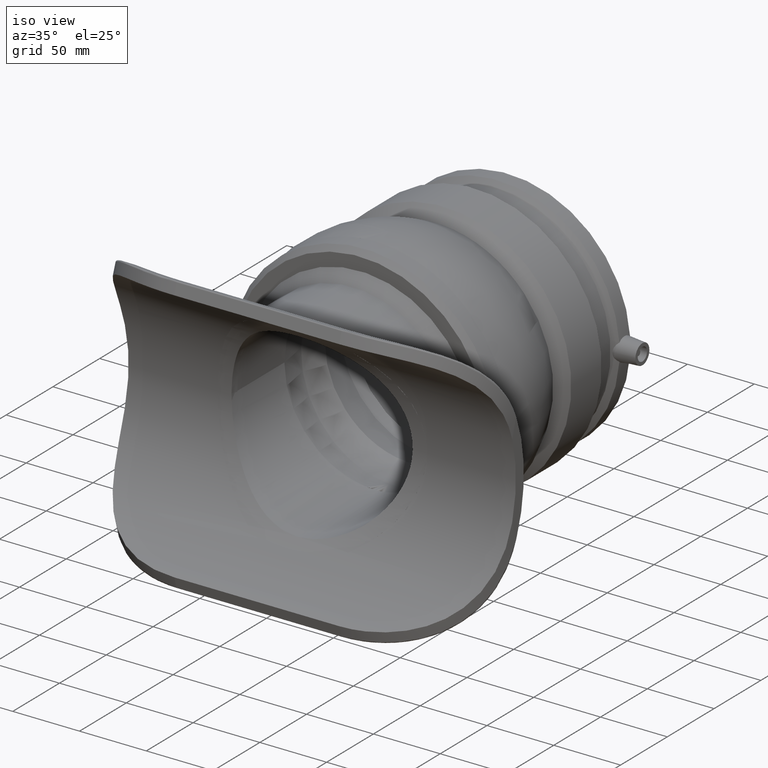
[diagram: clean part render]
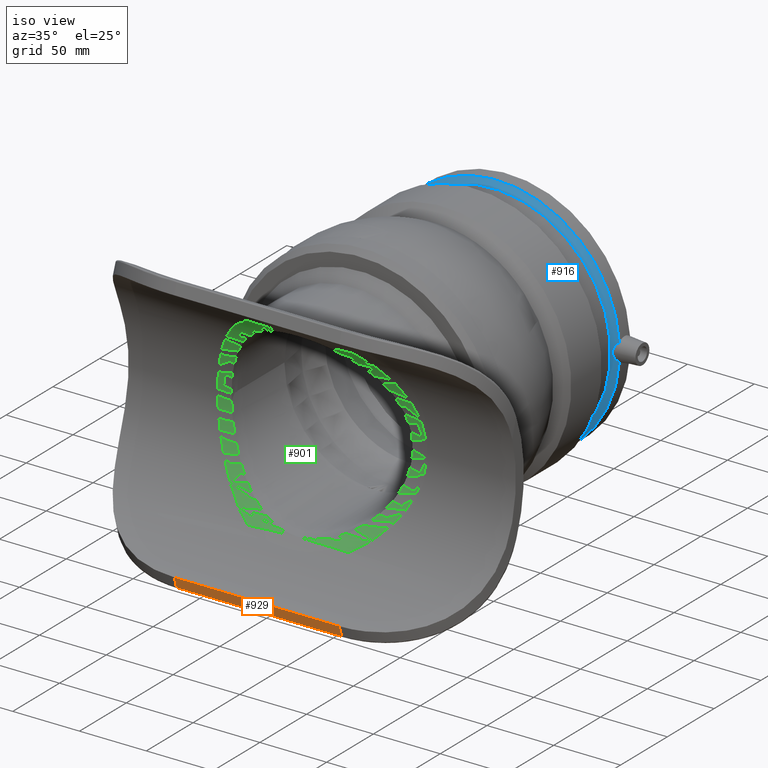
[diagram: same view with three faces highlighted in distinct colors, each labeled with its STEP entity id]
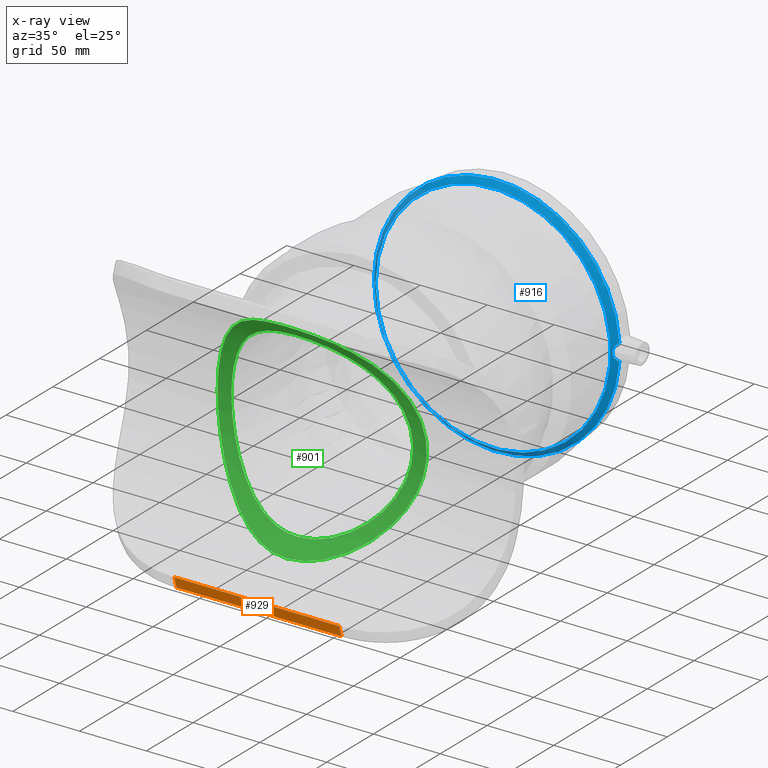
[diagram: x-ray of the same camera — body ghosted, the three highlighted faces saturated]
A machine part, iso view with three faces highlighted in distinct colors.
The next image is the same camera in x-ray (body ghosted, the three faces saturated) — at least one of them is partly hidden behind the body in this view.
Their STEP definitions:

[orange] entity #929 — the highlighted planar face has unit normal (0, -0.9541, -0.2994).
#17=LINE('',#2078,#45);
#19=LINE('',#2168,#47);
#20=LINE('',#2170,#48);
#21=LINE('',#2171,#49);
#45=VECTOR('',#1231,123.6);
#47=VECTOR('',#1243,8.16480018934072);
#48=VECTOR('',#1244,123.6);
#49=VECTOR('',#1245,8.16480018934075);
#236=FACE_OUTER_BOUND('',#335,.T.);
#335=EDGE_LOOP('',(#740,#741,#742,#743));
#470=VERTEX_POINT('',#2052);
#472=VERTEX_POINT('',#2076);
#475=VERTEX_POINT('',#2167);
#476=VERTEX_POINT('',#2169);
#565=EDGE_CURVE('',#472,#470,#17,.T.);
#572=EDGE_CURVE('',#475,#472,#19,.T.);
#573=EDGE_CURVE('',#476,#475,#20,.T.);
#574=EDGE_CURVE('',#470,#476,#21,.T.);
#740=ORIENTED_EDGE('',*,*,#565,.F.);
#741=ORIENTED_EDGE('',*,*,#572,.F.);
#742=ORIENTED_EDGE('',*,*,#573,.F.);
#743=ORIENTED_EDGE('',*,*,#574,.F.);
#879=PLANE('',#1038);
#929=ADVANCED_FACE('',(#236),#879,.T.);
#1038=AXIS2_PLACEMENT_3D('',#2166,#1241,#1242);
#1231=DIRECTION('',(-1.,0.,0.));
#1241=DIRECTION('center_axis',(0.,-0.954128440366973,-0.299397593983132));
#1242=DIRECTION('ref_axis',(0.,0.299397593983131,-0.954128440366973));
#1243=DIRECTION('',(0.,0.299397593983132,-0.954128440366973));
#1244=DIRECTION('',(1.,0.,0.));
#1245=DIRECTION('',(0.,-0.299397593983132,0.954128440366973));
#2052=CARTESIAN_POINT('',(-61.8,-108.015719069645,-103.203112107261));
#2076=CARTESIAN_POINT('',(61.8,-108.015719069645,-103.203112107261));
#2078=CARTESIAN_POINT('',(0.,-108.015719069645,-103.203112107261));
#2166=CARTESIAN_POINT('Origin',(0.,-110.460240601687,-95.4128440366973));
#2167=CARTESIAN_POINT('',(61.8,-110.460240601687,-95.4128440366972));
#2168=CARTESIAN_POINT('',(61.8,-121.98822628771,-58.6751439875854));
#2169=CARTESIAN_POINT('',(-61.8,-110.460240601687,-95.4128440366972));
#2170=CARTESIAN_POINT('',(0.,-110.460240601687,-95.4128440366972));
#2171=CARTESIAN_POINT('',(-61.8,-121.98822628771,-58.6751439875854));

[blue] entity #916 — the highlighted conical surface has half-angle 45 deg.
#87=B_SPLINE_CURVE_WITH_KNOTS('',3,(#1377,#1378,#1379,#1380,#1381,#1382,
#1383,#1384,#1385,#1386,#1387,#1388,#1389,#1390),.UNSPECIFIED.,.F.,.F.,
(4,2,2,2,2,2,4),(1.4263817693966,1.6404548415016,1.93214353787838,2.22383223425516,
2.51552093063194,2.80720962700873,3.02128269911373),.UNSPECIFIED.);
#131=CONICAL_SURFACE('',#1015,90.,45.);
#160=FACE_BOUND('',#319,.T.);
#223=FACE_OUTER_BOUND('',#318,.T.);
#318=EDGE_LOOP('',(#695,#696));
#319=EDGE_LOOP('',(#697));
#391=CIRCLE('',#1014,88.);
#392=CIRCLE('',#1016,92.);
#432=VERTEX_POINT('',#1375);
#433=VERTEX_POINT('',#1376);
#455=VERTEX_POINT('',#1666);
#517=EDGE_CURVE('',#432,#433,#87,.T.);
#543=EDGE_CURVE('',#455,#455,#391,.T.);
#544=EDGE_CURVE('',#432,#433,#392,.T.);
#695=ORIENTED_EDGE('',*,*,#517,.T.);
#696=ORIENTED_EDGE('',*,*,#544,.F.);
#697=ORIENTED_EDGE('',*,*,#543,.T.);
#916=ADVANCED_FACE('',(#223,#160),#131,.T.);
#1014=AXIS2_PLACEMENT_3D('',#1667,#1189,#1190);
#1015=AXIS2_PLACEMENT_3D('',#1668,#1191,#1192);
#1016=AXIS2_PLACEMENT_3D('',#1669,#1193,#1194);
#1189=DIRECTION('center_axis',(0.,1.,0.));
#1190=DIRECTION('ref_axis',(1.,0.,0.));
#1191=DIRECTION('center_axis',(0.,1.,0.));
#1192=DIRECTION('ref_axis',(-1.,0.,0.));
#1193=DIRECTION('center_axis',(0.,1.,0.));
#1194=DIRECTION('ref_axis',(1.,0.,0.));
#1375=CARTESIAN_POINT('',(91.7686795260562,146.208,-6.51992776370901));
#1376=CARTESIAN_POINT('',(91.7686795260562,146.208,6.51992776370901));
#1377=CARTESIAN_POINT('Ctrl Pts',(91.7686795260563,146.208,-6.51992776370892));
#1378=CARTESIAN_POINT('Ctrl Pts',(91.3171444325082,145.731837040114,-6.15639413253726));
#1379=CARTESIAN_POINT('Ctrl Pts',(90.9009424978453,145.288540171165,-5.734444240214));
#1380=CARTESIAN_POINT('Ctrl Pts',(90.035577725633,144.360210842786,-4.62470789176811));
#1381=CARTESIAN_POINT('Ctrl Pts',(89.5734533164351,143.85797892466,-3.81167543351705));
#1382=CARTESIAN_POINT('Ctrl Pts',(88.9433415217213,143.168941710032,-1.9861630157502));
#1383=CARTESIAN_POINT('Ctrl Pts',(88.7766399076177,142.984639907618,-0.972295654589273));
#1384=CARTESIAN_POINT('Ctrl Pts',(88.7766399076177,142.984639907618,0.972295654589272));
#1385=CARTESIAN_POINT('Ctrl Pts',(88.9433415217212,143.168941710032,1.98616301575022));
#1386=CARTESIAN_POINT('Ctrl Pts',(89.5734533164351,143.85797892466,3.81167543351707));
#1387=CARTESIAN_POINT('Ctrl Pts',(90.035577725633,144.360210842786,4.62470789176811));
#1388=CARTESIAN_POINT('Ctrl Pts',(90.9009424978453,145.288540171165,5.73444424021401));
#1389=CARTESIAN_POINT('Ctrl Pts',(91.3171444325082,145.731837040114,6.15639413253724));
#1390=CARTESIAN_POINT('Ctrl Pts',(91.7686795260563,146.208,6.51992776370891));
#1666=CARTESIAN_POINT('',(-88.,142.208,0.));
#1667=CARTESIAN_POINT('Origin',(0.,142.208,0.));
#1668=CARTESIAN_POINT('Origin',(0.,144.208,0.));
#1669=CARTESIAN_POINT('Origin',(0.,146.208,0.));

[green] entity #901 — the highlighted cylindrical surface (partial cylindrical patch) has radius 100 mm, axis along (-1, 0, 0).
#95=B_SPLINE_CURVE_WITH_KNOTS('',3,(#1496,#1497,#1498,#1499,#1500,#1501,
#1502,#1503,#1504,#1505,#1506,#1507,#1508,#1509,#1510,#1511,#1512,#1513,
#1514,#1515,#1516,#1517,#1518,#1519,#1520,#1521,#1522,#1523,#1524,#1525,
#1526,#1527,#1528,#1529,#1530,#1531,#1532,#1533,#1534,#1535,#1536,#1537,
#1538,#1539,#1540,#1541,#1542,#1543,#1544,#1545,#1546,#1547,#1548,#1549,
#1550,#1551,#1552,#1553,#1554,#1555,#1556,#1557,#1558,#1559,#1560,#1561),
 .UNSPECIFIED.,.T.,.F.,(4,2,2,2,2,2,2,2,2,2,2,2,2,2,2,2,2,2,2,2,2,2,2,2,
2,2,2,2,2,2,2,2,4),(0.,1.59769590562657,3.19539181125315,4.79308771687972,
6.3907836225063,7.944674521023,9.4985654195397,11.0524563180564,12.6063472165731,
14.1602381150898,15.7141290136065,17.2680199121232,18.8219108106399,20.4196067162665,
22.0173026218931,23.6149985275196,25.2126944331462,26.8103903387728,28.4080862443994,
30.0057821500259,31.6034780556525,33.1573689541692,34.7112598526859,36.2651507512026,
37.8190416497193,39.372932548236,40.9268234467527,42.4807143452694,44.0346052437861,
45.6323011494127,47.2299970550393,48.8276929606658,50.4253888662924),
 .UNSPECIFIED.);
#96=B_SPLINE_CURVE_WITH_KNOTS('',3,(#1563,#1564,#1565,#1566,#1567,#1568,
#1569,#1570,#1571,#1572,#1573,#1574,#1575,#1576,#1577,#1578,#1579,#1580,
#1581,#1582,#1583,#1584,#1585,#1586,#1587,#1588,#1589,#1590,#1591,#1592,
#1593,#1594,#1595,#1596,#1597,#1598,#1599,#1600,#1601,#1602,#1603,#1604,
#1605,#1606,#1607,#1608,#1609,#1610,#1611,#1612,#1613,#1614,#1615,#1616,
#1617,#1618,#1619,#1620,#1621,#1622,#1623,#1624,#1625,#1626,#1627,#1628),
 .UNSPECIFIED.,.T.,.F.,(4,2,2,2,2,2,2,2,2,2,2,2,2,2,2,2,2,2,2,2,2,2,2,2,
2,2,2,2,2,2,2,2,4),(0.,1.34518154642336,2.69036309284672,4.03554463927008,
5.38072618569344,6.70947921800756,8.03823225032169,9.36698528263581,10.6957383149499,
12.0244913472641,13.3532443795782,14.6819974118923,16.0107504442064,17.3559319906298,
18.7011135370532,20.0462950834765,21.3914766298999,22.7366581763232,24.0818397227466,
25.42702126917,26.7722028155933,28.1009558479074,29.4297088802216,30.7584619125357,
32.0872149448498,33.4159679771639,34.7447210094781,36.0734740417922,37.4022270741063,
38.7474086205297,40.092590166953,41.4377717133764,42.7829532597997),
 .UNSPECIFIED.);
#145=FACE_BOUND('',#290,.T.);
#171=CYLINDRICAL_SURFACE('',#987,100.);
#209=FACE_OUTER_BOUND('',#289,.T.);
#289=EDGE_LOOP('',(#662));
#290=EDGE_LOOP('',(#663));
#442=VERTEX_POINT('',#1495);
#443=VERTEX_POINT('',#1562);
#529=EDGE_CURVE('',#442,#442,#95,.T.);
#530=EDGE_CURVE('',#443,#443,#96,.T.);
#662=ORIENTED_EDGE('',*,*,#529,.F.);
#663=ORIENTED_EDGE('',*,*,#530,.F.);
#901=ADVANCED_FACE('',(#209,#145),#171,.F.);
#987=AXIS2_PLACEMENT_3D('',#1494,#1135,#1136);
#1135=DIRECTION('center_axis',(-1.,0.,0.));
#1136=DIRECTION('ref_axis',(0.,0.,1.));
#1494=CARTESIAN_POINT('Origin',(145.,-140.4,0.));
#1495=CARTESIAN_POINT('',(0.,-78.3239176493877,-78.4));
#1496=CARTESIAN_POINT('Ctrl Pts',(0.,-78.3239176493877,-78.4));
#1497=CARTESIAN_POINT('Ctrl Pts',(-5.32565301875525,-78.3239176493877,-78.4));
#1498=CARTESIAN_POINT('Ctrl Pts',(-10.630492297349,-77.6181569089875,-77.8534929344104));
#1499=CARTESIAN_POINT('Ctrl Pts',(-20.9252217397699,-75.0821823249025,-75.7384238828739));
#1500=CARTESIAN_POINT('Ctrl Pts',(-25.9184323654425,-73.2646838092145,-74.1707984636274));
#1501=CARTESIAN_POINT('Ctrl Pts',(-35.3965400190154,-69.0676815662644,-70.1438375283453));
#1502=CARTESIAN_POINT('Ctrl Pts',(-39.8893278430758,-66.6904641273856,-67.6806718905974));
#1503=CARTESIAN_POINT('Ctrl Pts',(-48.206661077966,-61.8772683864591,-62.031843835618));
#1504=CARTESIAN_POINT('Ctrl Pts',(-52.0303430906779,-59.442358360599,-58.8440001993727));
#1505=CARTESIAN_POINT('Ctrl Pts',(-58.7505930944789,-54.9660223544385,-52.1237501955717));
#1506=CARTESIAN_POINT('Ctrl Pts',(-61.9163141224283,-52.7460270933769,-48.3552261975786));
#1507=CARTESIAN_POINT('Ctrl Pts',(-67.5876965588271,-48.6520532331404,-40.0469865432192));
#1508=CARTESIAN_POINT('Ctrl Pts',(-70.093504028834,-46.7796981640422,-35.50657067452));
#1509=CARTESIAN_POINT('Ctrl Pts',(-74.1825658116322,-43.6802263694107,-25.8990941406224));
#1510=CARTESIAN_POINT('Ctrl Pts',(-75.7693203688613,-42.4510817031948,-20.8209605963026));
#1511=CARTESIAN_POINT('Ctrl Pts',(-77.8785047606713,-40.8105317309646,-10.4613959799619));
#1512=CARTESIAN_POINT('Ctrl Pts',(-78.4,-40.4,-5.17963632838901));
#1513=CARTESIAN_POINT('Ctrl Pts',(-78.4,-40.4,5.17963632838901));
#1514=CARTESIAN_POINT('Ctrl Pts',(-77.8785047606713,-40.8105317309646,10.4613959799619));
#1515=CARTESIAN_POINT('Ctrl Pts',(-75.7693203688613,-42.4510817031948,20.8209605963026));
#1516=CARTESIAN_POINT('Ctrl Pts',(-74.1825658116322,-43.6802263694107,25.8990941406224));
#1517=CARTESIAN_POINT('Ctrl Pts',(-70.0935040288341,-46.7796981640422,35.5065706745199));
#1518=CARTESIAN_POINT('Ctrl Pts',(-67.5876965588271,-48.6520532331404,40.0469865432192));
#1519=CARTESIAN_POINT('Ctrl Pts',(-61.9163141224283,-52.7460270933769,48.3552261975786));
#1520=CARTESIAN_POINT('Ctrl Pts',(-58.7505930944789,-54.9660223544385,52.1237501955717));
#1521=CARTESIAN_POINT('Ctrl Pts',(-52.0303430906779,-59.442358360599,58.8440001993727));
#1522=CARTESIAN_POINT('Ctrl Pts',(-48.206661077966,-61.8772683864591,62.031843835618));
#1523=CARTESIAN_POINT('Ctrl Pts',(-39.8893278430758,-66.6904641273856,67.6806718905974));
#1524=CARTESIAN_POINT('Ctrl Pts',(-35.3965400190154,-69.0676815662644,70.1438375283453));
#1525=CARTESIAN_POINT('Ctrl Pts',(-25.9184323654425,-73.2646838092145,74.1707984636274));
#1526=CARTESIAN_POINT('Ctrl Pts',(-20.9252217397699,-75.0821823249025,75.7384238828739));
#1527=CARTESIAN_POINT('Ctrl Pts',(-10.630492297349,-77.6181569089875,77.8534929344104));
#1528=CARTESIAN_POINT('Ctrl Pts',(-5.32565301875524,-78.3239176493877,78.4));
#1529=CARTESIAN_POINT('Ctrl Pts',(5.32565301875524,-78.3239176493877,78.4));
#1530=CARTESIAN_POINT('Ctrl Pts',(10.630492297349,-77.6181569089875,77.8534929344104));
#1531=CARTESIAN_POINT('Ctrl Pts',(20.9252217397699,-75.0821823249025,75.7384238828739));
#1532=CARTESIAN_POINT('Ctrl Pts',(25.9184323654426,-73.2646838092145,74.1707984636274));
#1533=CARTESIAN_POINT('Ctrl Pts',(35.3965400190154,-69.0676815662644,70.1438375283453));
#1534=CARTESIAN_POINT('Ctrl Pts',(39.8893278430758,-66.6904641273856,67.6806718905974));
#1535=CARTESIAN_POINT('Ctrl Pts',(48.206661077966,-61.8772683864591,62.031843835618));
#1536=CARTESIAN_POINT('Ctrl Pts',(52.0303430906779,-59.4423583605989,58.8440001993727));
#1537=CARTESIAN_POINT('Ctrl Pts',(58.7505930944789,-54.9660223544385,52.1237501955718));
#1538=CARTESIAN_POINT('Ctrl Pts',(61.9163141224283,-52.7460270933769,48.3552261975786));
#1539=CARTESIAN_POINT('Ctrl Pts',(67.5876965588271,-48.6520532331404,40.0469865432192));
#1540=CARTESIAN_POINT('Ctrl Pts',(70.0935040288341,-46.7796981640422,35.5065706745199));
#1541=CARTESIAN_POINT('Ctrl Pts',(74.1825658116322,-43.6802263694107,25.8990941406224));
#1542=CARTESIAN_POINT('Ctrl Pts',(75.7693203688613,-42.4510817031948,20.8209605963026));
#1543=CARTESIAN_POINT('Ctrl Pts',(77.8785047606713,-40.8105317309646,10.4613959799619));
#1544=CARTESIAN_POINT('Ctrl Pts',(78.4,-40.4,5.17963632838903));
#1545=CARTESIAN_POINT('Ctrl Pts',(78.4,-40.4,-5.17963632838901));
#1546=CARTESIAN_POINT('Ctrl Pts',(77.8785047606713,-40.8105317309646,-10.4613959799619));
#1547=CARTESIAN_POINT('Ctrl Pts',(75.7693203688613,-42.4510817031948,-20.8209605963026));
#1548=CARTESIAN_POINT('Ctrl Pts',(74.1825658116322,-43.6802263694107,-25.8990941406224));
#1549=CARTESIAN_POINT('Ctrl Pts',(70.0935040288341,-46.7796981640422,-35.5065706745199));
#1550=CARTESIAN_POINT('Ctrl Pts',(67.5876965588271,-48.6520532331404,-40.0469865432192));
#1551=CARTESIAN_POINT('Ctrl Pts',(61.9163141224283,-52.7460270933769,-48.3552261975785));
#1552=CARTESIAN_POINT('Ctrl Pts',(58.7505930944789,-54.9660223544385,-52.1237501955717));
#1553=CARTESIAN_POINT('Ctrl Pts',(52.0303430906779,-59.4423583605989,-58.8440001993727));
#1554=CARTESIAN_POINT('Ctrl Pts',(48.206661077966,-61.8772683864591,-62.031843835618));
#1555=CARTESIAN_POINT('Ctrl Pts',(39.8893278430758,-66.6904641273856,-67.6806718905974));
#1556=CARTESIAN_POINT('Ctrl Pts',(35.3965400190154,-69.0676815662644,-70.1438375283453));
#1557=CARTESIAN_POINT('Ctrl Pts',(25.9184323654425,-73.2646838092146,-74.1707984636274));
#1558=CARTESIAN_POINT('Ctrl Pts',(20.9252217397698,-75.0821823249025,-75.7384238828739));
#1559=CARTESIAN_POINT('Ctrl Pts',(10.630492297349,-77.6181569089875,-77.8534929344104));
#1560=CARTESIAN_POINT('Ctrl Pts',(5.32565301875525,-78.3239176493877,-78.4));
#1561=CARTESIAN_POINT('Ctrl Pts',(2.22044604925031E-15,-78.3239176493877,
-78.4));
#1562=CARTESIAN_POINT('',(0.,-67.0787888807065,-68.));
#1563=CARTESIAN_POINT('Ctrl Pts',(0.,-67.0787888807065,-68.));
#1564=CARTESIAN_POINT('Ctrl Pts',(4.48393848807787,-67.0787888807065,-68.));
#1565=CARTESIAN_POINT('Ctrl Pts',(9.03123013103878,-66.6546803692181,-67.5506422247784));
#1566=CARTESIAN_POINT('Ctrl Pts',(17.9396872023304,-65.0432392234197,-65.7481560376087));
#1567=CARTESIAN_POINT('Ctrl Pts',(22.302042884274,-63.861257805608,-64.3961305300476));
#1568=CARTESIAN_POINT('Ctrl Pts',(30.5921209973135,-61.0484199393815,-60.8963569833406));
#1569=CARTESIAN_POINT('Ctrl Pts',(34.5286596837289,-59.4195157487222,-58.7456081685491));
#1570=CARTESIAN_POINT('Ctrl Pts',(41.7961349739397,-56.0641986665378,-53.8178215964714));
#1571=CARTESIAN_POINT('Ctrl Pts',(45.1271077062316,-54.3398755214394,-51.0394145351388));
#1572=CARTESIAN_POINT('Ctrl Pts',(51.0033114468921,-51.117441212045,-45.1632107944784));
#1573=CARTESIAN_POINT('Ctrl Pts',(53.7748671732349,-49.4940253001869,-41.8518251121274));
#1574=CARTESIAN_POINT('Ctrl Pts',(58.7144135388106,-46.4875820136051,-34.5822100089273));
#1575=CARTESIAN_POINT('Ctrl Pts',(60.8826894225936,-45.1061981285755,-30.6234948229822));
#1576=CARTESIAN_POINT('Ctrl Pts',(64.4053204321805,-42.8179728690072,-22.2812742118636));
#1577=CARTESIAN_POINT('Ctrl Pts',(65.7625783421708,-41.9100290004451,-17.8888030987161));
#1578=CARTESIAN_POINT('Ctrl Pts',(67.5602904340848,-40.7006994969564,-8.96287582959913));
#1579=CARTESIAN_POINT('Ctrl Pts',(68.,-40.4,-4.42917677438042));
#1580=CARTESIAN_POINT('Ctrl Pts',(68.,-40.4,4.4291767743804));
#1581=CARTESIAN_POINT('Ctrl Pts',(67.5602904340848,-40.7006994969564,8.9628758295991));
#1582=CARTESIAN_POINT('Ctrl Pts',(65.7625783421708,-41.9100290004451,17.888803098716));
#1583=CARTESIAN_POINT('Ctrl Pts',(64.4053204321805,-42.8179728690072,22.2812742118636));
#1584=CARTESIAN_POINT('Ctrl Pts',(60.8826894225936,-45.1061981285755,30.6234948229822));
#1585=CARTESIAN_POINT('Ctrl Pts',(58.7144135388106,-46.4875820136051,34.5822100089273));
#1586=CARTESIAN_POINT('Ctrl Pts',(53.7748671732349,-49.4940253001869,41.8518251121274));
#1587=CARTESIAN_POINT('Ctrl Pts',(51.0033114468921,-51.117441212045,45.1632107944784));
#1588=CARTESIAN_POINT('Ctrl Pts',(45.1271077062316,-54.3398755214394,51.0394145351388));
#1589=CARTESIAN_POINT('Ctrl Pts',(41.7961349739397,-56.0641986665378,53.8178215964714));
#1590=CARTESIAN_POINT('Ctrl Pts',(34.5286596837289,-59.4195157487222,58.7456081685491));
#1591=CARTESIAN_POINT('Ctrl Pts',(30.5921209973136,-61.0484199393815,60.8963569833406));
#1592=CARTESIAN_POINT('Ctrl Pts',(22.302042884274,-63.861257805608,64.3961305300476));
#1593=CARTESIAN_POINT('Ctrl Pts',(17.9396872023305,-65.0432392234197,65.7481560376087));
#1594=CARTESIAN_POINT('Ctrl Pts',(9.03123013103879,-66.6546803692181,67.5506422247784));
#1595=CARTESIAN_POINT('Ctrl Pts',(4.48393848807787,-67.0787888807065,68.));
#1596=CARTESIAN_POINT('Ctrl Pts',(-4.48393848807787,-67.0787888807065,68.));
#1597=CARTESIAN_POINT('Ctrl Pts',(-9.0312301310388,-66.6546803692181,67.5506422247784));
#1598=CARTESIAN_POINT('Ctrl Pts',(-17.9396872023304,-65.0432392234197,65.7481560376087));
#1599=CARTESIAN_POINT('Ctrl Pts',(-22.302042884274,-63.861257805608,64.3961305300476));
#1600=CARTESIAN_POINT('Ctrl Pts',(-30.5921209973135,-61.0484199393815,60.8963569833406));
#1601=CARTESIAN_POINT('Ctrl Pts',(-34.5286596837289,-59.4195157487223,58.7456081685491));
#1602=CARTESIAN_POINT('Ctrl Pts',(-41.7961349739397,-56.0641986665378,53.8178215964715));
#1603=CARTESIAN_POINT('Ctrl Pts',(-45.1271077062316,-54.3398755214394,51.0394145351388));
#1604=CARTESIAN_POINT('Ctrl Pts',(-51.0033114468921,-51.117441212045,45.1632107944784));
#1605=CARTESIAN_POINT('Ctrl Pts',(-53.7748671732349,-49.4940253001869,41.8518251121274));
#1606=CARTESIAN_POINT('Ctrl Pts',(-58.7144135388106,-46.4875820136051,34.5822100089274));
#1607=CARTESIAN_POINT('Ctrl Pts',(-60.8826894225936,-45.1061981285755,30.6234948229822));
#1608=CARTESIAN_POINT('Ctrl Pts',(-64.4053204321805,-42.8179728690072,22.2812742118636));
#1609=CARTESIAN_POINT('Ctrl Pts',(-65.7625783421708,-41.9100290004451,17.8888030987161));
#1610=CARTESIAN_POINT('Ctrl Pts',(-67.5602904340848,-40.7006994969564,8.96287582959913));
#1611=CARTESIAN_POINT('Ctrl Pts',(-68.,-40.4,4.42917677438043));
#1612=CARTESIAN_POINT('Ctrl Pts',(-68.,-40.4,-4.4291767743804));
#1613=CARTESIAN_POINT('Ctrl Pts',(-67.5602904340848,-40.7006994969564,-8.96287582959911));
#1614=CARTESIAN_POINT('Ctrl Pts',(-65.7625783421708,-41.9100290004451,-17.8888030987161));
#1615=CARTESIAN_POINT('Ctrl Pts',(-64.4053204321805,-42.8179728690072,-22.2812742118636));
#1616=CARTESIAN_POINT('Ctrl Pts',(-60.8826894225936,-45.1061981285755,-30.6234948229822));
#1617=CARTESIAN_POINT('Ctrl Pts',(-58.7144135388106,-46.4875820136051,-34.5822100089274));
#1618=CARTESIAN_POINT('Ctrl Pts',(-53.7748671732349,-49.4940253001869,-41.8518251121274));
#1619=CARTESIAN_POINT('Ctrl Pts',(-51.0033114468921,-51.117441212045,-45.1632107944784));
#1620=CARTESIAN_POINT('Ctrl Pts',(-45.1271077062316,-54.3398755214394,-51.0394145351388));
#1621=CARTESIAN_POINT('Ctrl Pts',(-41.7961349739397,-56.0641986665378,-53.8178215964714));
#1622=CARTESIAN_POINT('Ctrl Pts',(-34.5286596837289,-59.4195157487222,-58.7456081685491));
#1623=CARTESIAN_POINT('Ctrl Pts',(-30.5921209973136,-61.0484199393815,-60.8963569833406));
#1624=CARTESIAN_POINT('Ctrl Pts',(-22.302042884274,-63.861257805608,-64.3961305300476));
#1625=CARTESIAN_POINT('Ctrl Pts',(-17.9396872023305,-65.0432392234197,-65.7481560376087));
#1626=CARTESIAN_POINT('Ctrl Pts',(-9.03123013103879,-66.6546803692181,-67.5506422247784));
#1627=CARTESIAN_POINT('Ctrl Pts',(-4.48393848807787,-67.0787888807065,-68.));
#1628=CARTESIAN_POINT('Ctrl Pts',(2.22044604925031E-15,-67.0787888807065,
-68.));